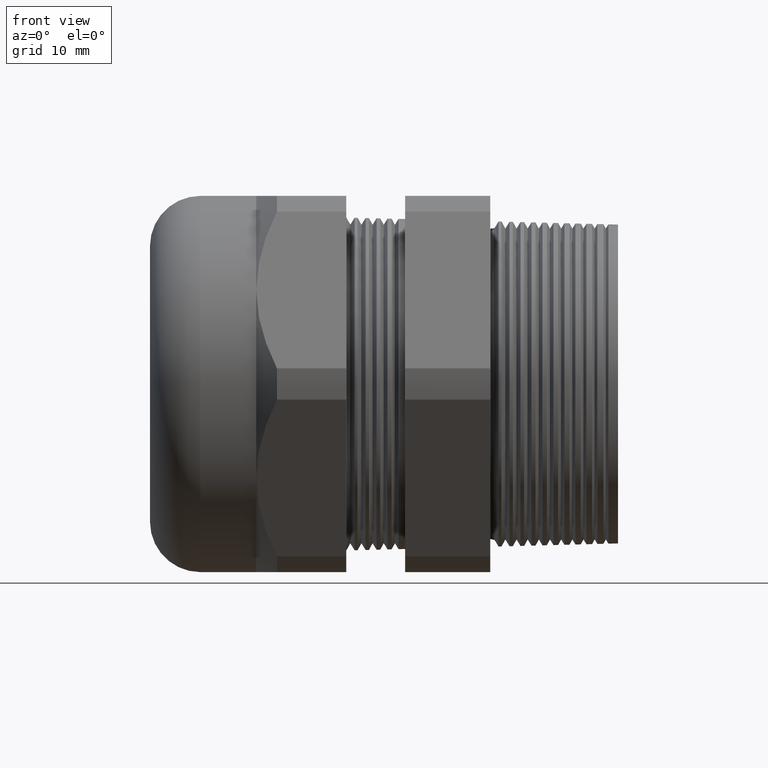
[diagram: clean part render]
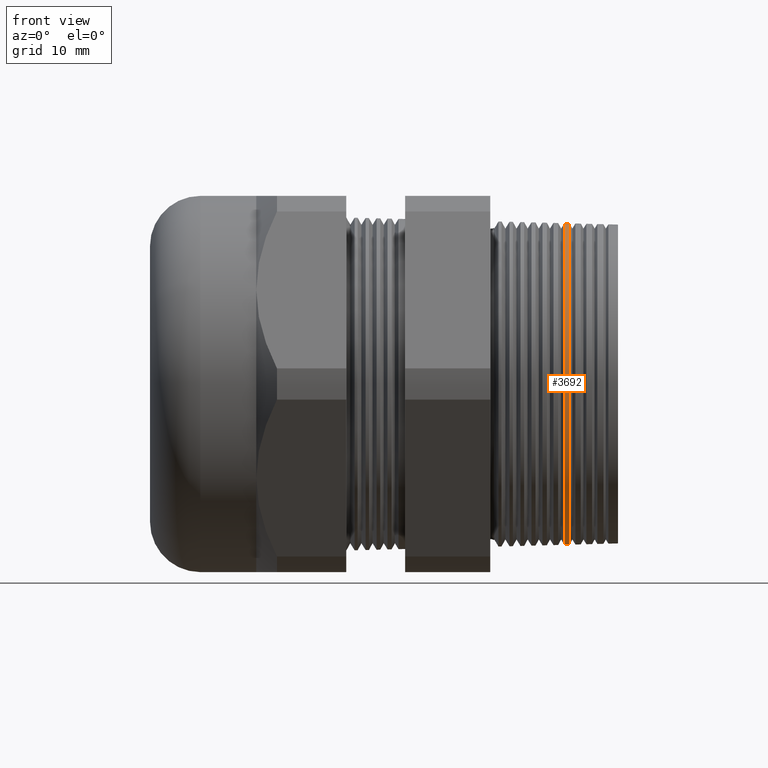
[diagram: same view with one face highlighted and labeled with its STEP entity id]
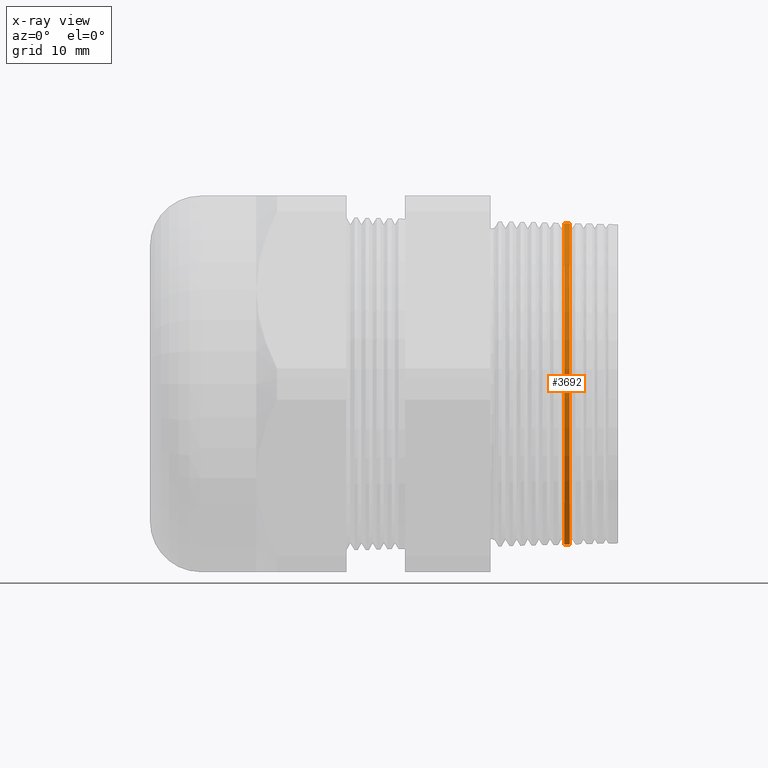
[diagram: x-ray of the same camera — body ghosted, the highlighted face saturated]
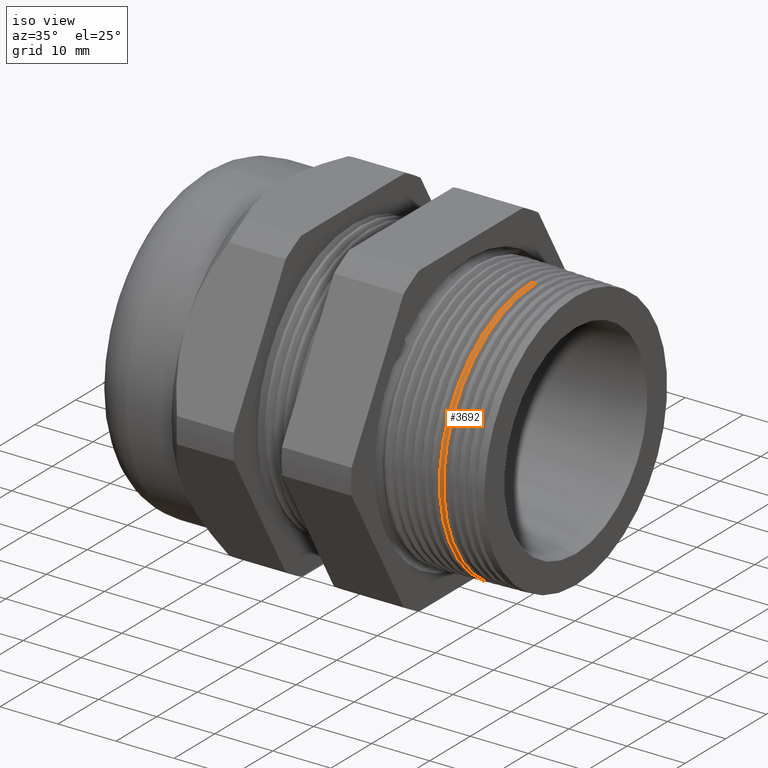
[diagram: same view with one face highlighted and labeled with its STEP entity id]
A machine part, front view. The second image highlights one B-rep face of the part: STEP entity #3692.
The next image is the same camera in x-ray: the body ghosted, the highlighted face saturated — about 0% of this face is hidden behind the body in this view.
A second angle (iso view) of the same face is appended — the face is thin or edge-on in the first view.
In plain terms, the highlighted conical surface has half-angle 1.5 deg.
Its self-contained STEP definition (entity closure, byte-faithful):
#397 = EDGE_CURVE ( 'NONE', #685, #645, #1399, .T. ) ;
#400 = EDGE_CURVE ( 'NONE', #688, #642, #1452, .T. ) ;
#642 = VERTEX_POINT ( 'NONE', #1913 ) ;
#645 = VERTEX_POINT ( 'NONE', #1907 ) ;
#685 = VERTEX_POINT ( 'NONE', #1963 ) ;
#688 = VERTEX_POINT ( 'NONE', #2022 ) ;
#1391 = DIRECTION ( 'NONE',  ( -0.9996573249755573700, 3.205751595667375400E-018, -0.02617694830786594700 ) ) ;
#1392 = VECTOR ( 'NONE', #1391, 39.37007874015748100 ) ;
#1393 = CARTESIAN_POINT ( 'NONE',  ( 0.3999999999999999700, 1.084392484290115800E-016, -0.8854736606874015200 ) ) ;
#1399 = LINE ( 'NONE', #1393, #1392 ) ;
#1449 = DIRECTION ( 'NONE',  ( -0.9996573249755573700, 0.0000000000000000000, 0.02617694830786594700 ) ) ;
#1450 = VECTOR ( 'NONE', #1449, 39.37007874015748100 ) ;
#1451 = CARTESIAN_POINT ( 'NONE',  ( 0.3999999999999999700, 0.0000000000000000000, 0.8854736606874015200 ) ) ;
#1452 = LINE ( 'NONE', #1451, #1450 ) ;
#1907 = CARTESIAN_POINT ( 'NONE',  ( 0.1022970783310342400, 1.093939371931823100E-016, -0.8932692860451406600 ) ) ;
#1913 = CARTESIAN_POINT ( 'NONE',  ( 0.1022970783310342400, 0.0000000000000000000, 0.8932692860451406600 ) ) ;
#1963 = CARTESIAN_POINT ( 'NONE',  ( 0.1302595197600008000, 1.093491015084981300E-016, -0.8925370637469991500 ) ) ;
#2022 = CARTESIAN_POINT ( 'NONE',  ( 0.1302595197600008000, 0.0000000000000000000, 0.8925370637469991500 ) ) ;
#2315 = DIRECTION ( 'NONE',  ( 0.0000000000000000000, 0.0000000000000000000, 1.000000000000000000 ) ) ;
#2316 = DIRECTION ( 'NONE',  ( -1.000000000000000000, 0.0000000000000000000, 0.0000000000000000000 ) ) ;
#2317 = CARTESIAN_POINT ( 'NONE',  ( 0.3999999999999999700, 0.0000000000000000000, 0.0000000000000000000 ) ) ;
#2318 = AXIS2_PLACEMENT_3D ( 'NONE', #2317, #2316, #2315 ) ;
#2320 = CONICAL_SURFACE ( 'NONE', #2318, 0.8854736606874015200, 0.02617993877990773500 ) ;
#2321 = FACE_OUTER_BOUND ( 'NONE', #3693, .T. ) ;
#2322 = DIRECTION ( 'NONE',  ( 0.0000000000000000000, 0.0000000000000000000, -1.000000000000000000 ) ) ;
#2323 = DIRECTION ( 'NONE',  ( -1.000000000000000000, 0.0000000000000000000, 0.0000000000000000000 ) ) ;
#2324 = CARTESIAN_POINT ( 'NONE',  ( 0.1022970783310342400, 0.0000000000000000000, 0.0000000000000000000 ) ) ;
#2325 = AXIS2_PLACEMENT_3D ( 'NONE', #2324, #2323, #2322 ) ;
#2326 = CIRCLE ( 'NONE', #2325, 0.8932692860451408900 ) ;
#2327 = DIRECTION ( 'NONE',  ( 0.0000000000000000000, 0.0000000000000000000, 1.000000000000000000 ) ) ;
#2328 = DIRECTION ( 'NONE',  ( 1.000000000000000000, 0.0000000000000000000, 0.0000000000000000000 ) ) ;
#2329 = CARTESIAN_POINT ( 'NONE',  ( 0.1302595197600008000, 0.0000000000000000000, 0.0000000000000000000 ) ) ;
#2330 = AXIS2_PLACEMENT_3D ( 'NONE', #2329, #2328, #2327 ) ;
#2331 = CIRCLE ( 'NONE', #2330, 0.8925370637469991500 ) ;
#3686 = ORIENTED_EDGE ( 'NONE', *, *, #3689, .F. ) ;
#3687 = ORIENTED_EDGE ( 'NONE', *, *, #3691, .F. ) ;
#3688 = ORIENTED_EDGE ( 'NONE', *, *, #397, .F. ) ;
#3689 = EDGE_CURVE ( 'NONE', #688, #685, #2331, .T. ) ;
#3690 = ORIENTED_EDGE ( 'NONE', *, *, #400, .T. ) ;
#3691 = EDGE_CURVE ( 'NONE', #645, #642, #2326, .T. ) ;
#3692 = ADVANCED_FACE ( 'NONE', ( #2321 ), #2320, .T. ) ;
#3693 = EDGE_LOOP ( 'NONE', ( #3688, #3686, #3690, #3687 ) ) ;